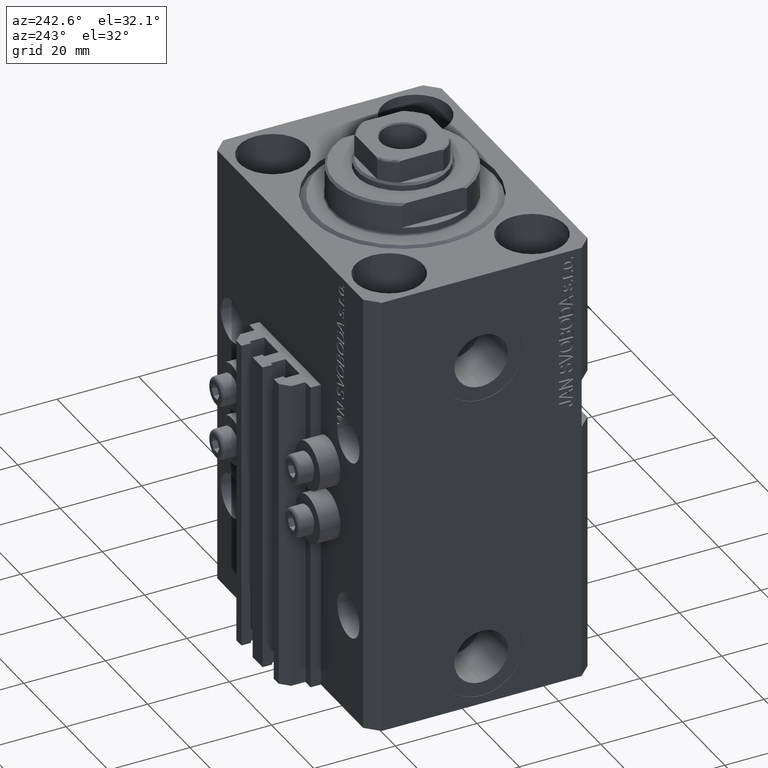
[diagram: clean part render]
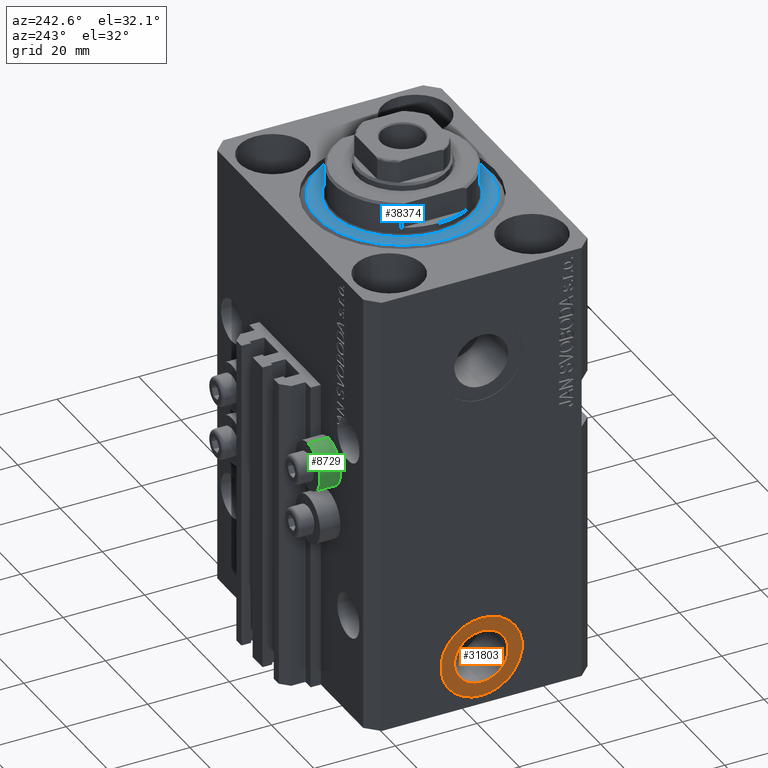
[diagram: same view with three faces highlighted in distinct colors, each labeled with its STEP entity id]
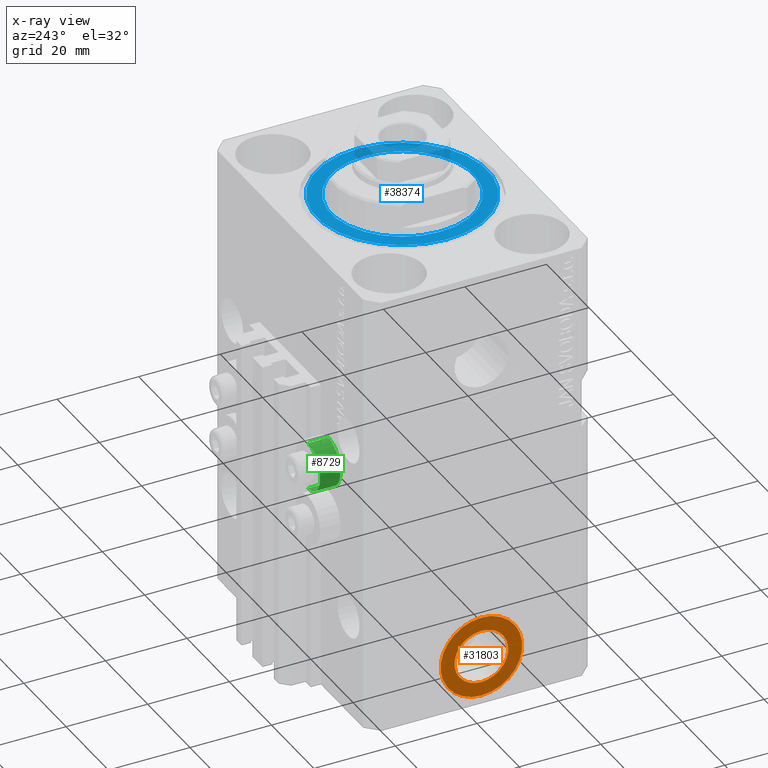
[diagram: x-ray of the same camera — body ghosted, the three highlighted faces saturated]
A machine part, auxiliary view with three faces highlighted in distinct colors.
The next image is the same camera in x-ray (body ghosted, the three faces saturated) — at least one of them is partly hidden behind the body in this view.
Their STEP definitions:

[orange] entity #31803 — the highlighted planar face has unit normal (-1, 0, 0).
#25 = ORIENTED_EDGE ( 'NONE', *, *, #39990, .T. ) ;
#676 = AXIS2_PLACEMENT_3D ( 'NONE', #33863, #45110, #8721 ) ;
#3196 = VERTEX_POINT ( 'NONE', #28965 ) ;
#3220 = EDGE_CURVE ( 'NONE', #21148, #15493, #11359, .T. ) ;
#3567 = DIRECTION ( 'NONE',  ( 0.000000000000000000, 0.000000000000000000, 1.000000000000000000 ) ) ;
#5114 = FACE_BOUND ( 'NONE', #10957, .T. ) ;
#5600 = DIRECTION ( 'NONE',  ( -1.000000000000000000, 0.000000000000000000, 0.000000000000000000 ) ) ;
#8721 = DIRECTION ( 'NONE',  ( 0.000000000000000000, 0.000000000000000000, 1.000000000000000000 ) ) ;
#10418 = AXIS2_PLACEMENT_3D ( 'NONE', #34208, #28908, #47094 ) ;
#10957 = EDGE_LOOP ( 'NONE', ( #18020, #21918 ) ) ;
#11359 = CIRCLE ( 'NONE', #32753, 6.580000000000002736 ) ;
#13734 = CARTESIAN_POINT ( 'NONE',  ( -37.39999999999999147, -1.200153863164406187E-14, -98.00000000000000000 ) ) ;
#14114 = DIRECTION ( 'NONE',  ( -1.000000000000000000, 0.000000000000000000, 0.000000000000000000 ) ) ;
#14591 = CARTESIAN_POINT ( 'NONE',  ( -37.39999999999999147, -1.200153863164406187E-14, -98.00000000000000000 ) ) ;
#15035 = EDGE_LOOP ( 'NONE', ( #27860, #25 ) ) ;
#15493 = VERTEX_POINT ( 'NONE', #23838 ) ;
#15652 = FACE_OUTER_BOUND ( 'NONE', #15035, .T. ) ;
#17252 = CIRCLE ( 'NONE', #44027, 9.999999999999994671 ) ;
#18020 = ORIENTED_EDGE ( 'NONE', *, *, #26785, .F. ) ;
#21148 = VERTEX_POINT ( 'NONE', #35421 ) ;
#21918 = ORIENTED_EDGE ( 'NONE', *, *, #3220, .F. ) ;
#23381 = EDGE_CURVE ( 'NONE', #43342, #3196, #31744, .T. ) ;
#23453 = DIRECTION ( 'NONE',  ( 0.000000000000000000, 0.000000000000000000, 1.000000000000000000 ) ) ;
#23838 = CARTESIAN_POINT ( 'NONE',  ( -37.39999999999999147, -1.200153863164406187E-14, -91.42000000000000171 ) ) ;
#26785 = EDGE_CURVE ( 'NONE', #15493, #21148, #27261, .T. ) ;
#27261 = CIRCLE ( 'NONE', #10418, 6.580000000000002736 ) ;
#27860 = ORIENTED_EDGE ( 'NONE', *, *, #23381, .T. ) ;
#28908 = DIRECTION ( 'NONE',  ( -1.000000000000000000, 0.000000000000000000, 0.000000000000000000 ) ) ;
#28965 = CARTESIAN_POINT ( 'NONE',  ( -37.39999999999999147, -1.077689183249671039E-14, -108.0000000000000000 ) ) ;
#31744 = CIRCLE ( 'NONE', #35536, 9.999999999999994671 ) ;
#31803 = ADVANCED_FACE ( 'NONE', ( #5114, #15652 ), #45581, .T. ) ;
#32753 = AXIS2_PLACEMENT_3D ( 'NONE', #14591, #14114, #3567 ) ;
#33863 = CARTESIAN_POINT ( 'NONE',  ( -37.39999999999999147, -1.200153863164406187E-14, -98.00000000000000000 ) ) ;
#34208 = CARTESIAN_POINT ( 'NONE',  ( -37.39999999999999147, -1.200153863164406187E-14, -98.00000000000000000 ) ) ;
#35412 = CARTESIAN_POINT ( 'NONE',  ( -37.39999999999999147, -1.200153863164406187E-14, -98.00000000000000000 ) ) ;
#35421 = CARTESIAN_POINT ( 'NONE',  ( -37.39999999999999147, -1.119572103780510441E-14, -104.5800000000000125 ) ) ;
#35536 = AXIS2_PLACEMENT_3D ( 'NONE', #35412, #45236, #23453 ) ;
#39990 = EDGE_CURVE ( 'NONE', #3196, #43342, #17252, .T. ) ;
#43342 = VERTEX_POINT ( 'NONE', #46663 ) ;
#44027 = AXIS2_PLACEMENT_3D ( 'NONE', #13734, #5600, #45588 ) ;
#45110 = DIRECTION ( 'NONE',  ( -1.000000000000000000, 0.000000000000000000, 0.000000000000000000 ) ) ;
#45236 = DIRECTION ( 'NONE',  ( -1.000000000000000000, 0.000000000000000000, 0.000000000000000000 ) ) ;
#45581 = PLANE ( 'NONE',  #676 ) ;
#45588 = DIRECTION ( 'NONE',  ( 0.000000000000000000, 0.000000000000000000, 1.000000000000000000 ) ) ;
#46663 = CARTESIAN_POINT ( 'NONE',  ( -37.39999999999999147, -1.200153863164406187E-14, -88.00000000000001421 ) ) ;
#47094 = DIRECTION ( 'NONE',  ( 0.000000000000000000, 0.000000000000000000, 1.000000000000000000 ) ) ;

[blue] entity #38374 — the highlighted planar face has unit normal (0, 0, -1).
#1752 = VERTEX_POINT ( 'NONE', #28823 ) ;
#4927 = EDGE_CURVE ( 'NONE', #1752, #21653, #30500, .T. ) ;
#5719 = DIRECTION ( 'NONE',  ( -0.000000000000000000, -0.000000000000000000, -1.000000000000000000 ) ) ;
#5870 = AXIS2_PLACEMENT_3D ( 'NONE', #15813, #47356, #25568 ) ;
#5921 = CARTESIAN_POINT ( 'NONE',  ( 0.000000000000000000, 0.000000000000000000, 0.000000000000000000 ) ) ;
#6865 = ORIENTED_EDGE ( 'NONE', *, *, #45154, .T. ) ;
#7232 = AXIS2_PLACEMENT_3D ( 'NONE', #29623, #18373, #11187 ) ;
#7279 = AXIS2_PLACEMENT_3D ( 'NONE', #22178, #37254, #14756 ) ;
#7586 = FACE_BOUND ( 'NONE', #14977, .T. ) ;
#9760 = DIRECTION ( 'NONE',  ( 0.000000000000000000, 0.000000000000000000, 1.000000000000000000 ) ) ;
#9858 = AXIS2_PLACEMENT_3D ( 'NONE', #5921, #9760, #27240 ) ;
#9872 = CIRCLE ( 'NONE', #36632, 20.99999999999998934 ) ;
#10099 = VERTEX_POINT ( 'NONE', #45896 ) ;
#11187 = DIRECTION ( 'NONE',  ( 1.000000000000000000, 0.000000000000000000, 0.000000000000000000 ) ) ;
#11723 = ORIENTED_EDGE ( 'NONE', *, *, #4927, .T. ) ;
#12733 = VERTEX_POINT ( 'NONE', #40075 ) ;
#12915 = CARTESIAN_POINT ( 'NONE',  ( 0.000000000000000000, 0.000000000000000000, 0.000000000000000000 ) ) ;
#14756 = DIRECTION ( 'NONE',  ( 1.000000000000000000, 0.000000000000000000, -0.000000000000000000 ) ) ;
#14977 = EDGE_LOOP ( 'NONE', ( #16273, #11723 ) ) ;
#15813 = CARTESIAN_POINT ( 'NONE',  ( 0.000000000000000000, 0.000000000000000000, 0.000000000000000000 ) ) ;
#16273 = ORIENTED_EDGE ( 'NONE', *, *, #19095, .T. ) ;
#18373 = DIRECTION ( 'NONE',  ( 0.000000000000000000, 0.000000000000000000, 1.000000000000000000 ) ) ;
#19095 = EDGE_CURVE ( 'NONE', #21653, #1752, #35541, .T. ) ;
#20330 = DIRECTION ( 'NONE',  ( 1.000000000000000000, 0.000000000000000000, 0.000000000000000000 ) ) ;
#21653 = VERTEX_POINT ( 'NONE', #33187 ) ;
#21896 = CIRCLE ( 'NONE', #5870, 20.99999999999998934 ) ;
#22178 = CARTESIAN_POINT ( 'NONE',  ( 0.000000000000000000, 0.000000000000000000, 0.000000000000000000 ) ) ;
#25568 = DIRECTION ( 'NONE',  ( 1.000000000000000000, 0.000000000000000000, 0.000000000000000000 ) ) ;
#27240 = DIRECTION ( 'NONE',  ( 1.000000000000000000, 0.000000000000000000, 0.000000000000000000 ) ) ;
#28823 = CARTESIAN_POINT ( 'NONE',  ( -17.50000000000000000, 2.143131898507868643E-15, -2.168404344971008868E-16 ) ) ;
#29623 = CARTESIAN_POINT ( 'NONE',  ( 0.000000000000000000, 0.000000000000000000, 0.000000000000000000 ) ) ;
#29833 = PLANE ( 'NONE',  #7279 ) ;
#30500 = CIRCLE ( 'NONE', #9858, 17.50000000000000000 ) ;
#31923 = ORIENTED_EDGE ( 'NONE', *, *, #36452, .T. ) ;
#33187 = CARTESIAN_POINT ( 'NONE',  ( 17.50000000000000000, 0.000000000000000000, -2.168404344971008868E-16 ) ) ;
#35541 = CIRCLE ( 'NONE', #7232, 17.50000000000000000 ) ;
#36452 = EDGE_CURVE ( 'NONE', #10099, #12733, #9872, .T. ) ;
#36632 = AXIS2_PLACEMENT_3D ( 'NONE', #12915, #5719, #20330 ) ;
#37254 = DIRECTION ( 'NONE',  ( 0.000000000000000000, 0.000000000000000000, 1.000000000000000000 ) ) ;
#38374 = ADVANCED_FACE ( 'NONE', ( #7586, #47316 ), #29833, .F. ) ;
#40075 = CARTESIAN_POINT ( 'NONE',  ( -20.99999999999998934, 2.663606788145492628E-15, 0.000000000000000000 ) ) ;
#42065 = EDGE_LOOP ( 'NONE', ( #31923, #6865 ) ) ;
#45154 = EDGE_CURVE ( 'NONE', #12733, #10099, #21896, .T. ) ;
#45896 = CARTESIAN_POINT ( 'NONE',  ( 20.99999999999998934, 0.000000000000000000, 0.000000000000000000 ) ) ;
#47316 = FACE_OUTER_BOUND ( 'NONE', #42065, .T. ) ;
#47356 = DIRECTION ( 'NONE',  ( -0.000000000000000000, -0.000000000000000000, -1.000000000000000000 ) ) ;

[green] entity #8729 — the highlighted cylindrical surface (edge-blend (fillet) strip) has radius 5.8 mm, axis along (0, 1, 0).
#747 = LINE ( 'NONE', #41669, #18779 ) ;
#1398 = DIRECTION ( 'NONE',  ( 0.000000000000000000, 0.000000000000000000, 1.000000000000000000 ) ) ;
#2437 = EDGE_LOOP ( 'NONE', ( #31909, #20635, #27541, #15199 ) ) ;
#2880 = CYLINDRICAL_SURFACE ( 'NONE', #11529, 5.799999999999999822 ) ;
#3350 = DIRECTION ( 'NONE',  ( 0.000000000000000000, 0.000000000000000000, 1.000000000000000000 ) ) ;
#3719 = CARTESIAN_POINT ( 'NONE',  ( -18.00000000000000355, 32.49999999996100541, -56.20000000000000284 ) ) ;
#6628 = EDGE_CURVE ( 'NONE', #40645, #8496, #31520, .T. ) ;
#8484 = AXIS2_PLACEMENT_3D ( 'NONE', #20965, #13793, #42756 ) ;
#8496 = VERTEX_POINT ( 'NONE', #39603 ) ;
#8729 = ADVANCED_FACE ( 'NONE', ( #28980 ), #2880, .T. ) ;
#9334 = EDGE_CURVE ( 'NONE', #14098, #8496, #26054, .T. ) ;
#9343 = AXIS2_PLACEMENT_3D ( 'NONE', #38041, #41144, #1398 ) ;
#11529 = AXIS2_PLACEMENT_3D ( 'NONE', #39524, #42632, #3350 ) ;
#13793 = DIRECTION ( 'NONE',  ( -0.000000000000000000, 1.000000000000000000, -0.000000000000000000 ) ) ;
#14026 = EDGE_CURVE ( 'NONE', #26967, #40645, #29971, .T. ) ;
#14098 = VERTEX_POINT ( 'NONE', #3719 ) ;
#15199 = ORIENTED_EDGE ( 'NONE', *, *, #9334, .F. ) ;
#15296 = VECTOR ( 'NONE', #42516, 1000.000000000000000 ) ;
#18779 = VECTOR ( 'NONE', #41193, 1000.000000000000000 ) ;
#19497 = CARTESIAN_POINT ( 'NONE',  ( -18.00000000000000355, 27.50000000000000355, -44.60000000000000142 ) ) ;
#20263 = CARTESIAN_POINT ( 'NONE',  ( -18.00000000000000355, 32.49999999996100541, -44.60000000000000142 ) ) ;
#20635 = ORIENTED_EDGE ( 'NONE', *, *, #14026, .T. ) ;
#20965 = CARTESIAN_POINT ( 'NONE',  ( -18.00000000000000355, 32.49999999996100541, -50.39999999999999858 ) ) ;
#25785 = CARTESIAN_POINT ( 'NONE',  ( -18.00000000000000355, 27.50000000000000355, -56.20000000000000284 ) ) ;
#26054 = CIRCLE ( 'NONE', #8484, 5.799999999999999822 ) ;
#26967 = VERTEX_POINT ( 'NONE', #25785 ) ;
#27541 = ORIENTED_EDGE ( 'NONE', *, *, #6628, .T. ) ;
#28980 = FACE_OUTER_BOUND ( 'NONE', #2437, .T. ) ;
#29971 = CIRCLE ( 'NONE', #9343, 5.799999999999999822 ) ;
#31520 = LINE ( 'NONE', #20263, #15296 ) ;
#31909 = ORIENTED_EDGE ( 'NONE', *, *, #42403, .F. ) ;
#38041 = CARTESIAN_POINT ( 'NONE',  ( -18.00000000000000355, 27.50000000000000355, -50.39999999999999858 ) ) ;
#39524 = CARTESIAN_POINT ( 'NONE',  ( -18.00000000000000355, 32.49999999996100541, -50.39999999999999858 ) ) ;
#39603 = CARTESIAN_POINT ( 'NONE',  ( -18.00000000000000355, 32.49999999996100541, -44.60000000000000142 ) ) ;
#40645 = VERTEX_POINT ( 'NONE', #19497 ) ;
#41144 = DIRECTION ( 'NONE',  ( -0.000000000000000000, 1.000000000000000000, -0.000000000000000000 ) ) ;
#41193 = DIRECTION ( 'NONE',  ( -0.000000000000000000, 1.000000000000000000, -0.000000000000000000 ) ) ;
#41669 = CARTESIAN_POINT ( 'NONE',  ( -18.00000000000000355, 32.49999999996100541, -56.20000000000000284 ) ) ;
#42403 = EDGE_CURVE ( 'NONE', #26967, #14098, #747, .T. ) ;
#42516 = DIRECTION ( 'NONE',  ( -0.000000000000000000, 1.000000000000000000, -0.000000000000000000 ) ) ;
#42632 = DIRECTION ( 'NONE',  ( -0.000000000000000000, 1.000000000000000000, -0.000000000000000000 ) ) ;
#42756 = DIRECTION ( 'NONE',  ( 0.000000000000000000, 0.000000000000000000, 1.000000000000000000 ) ) ;